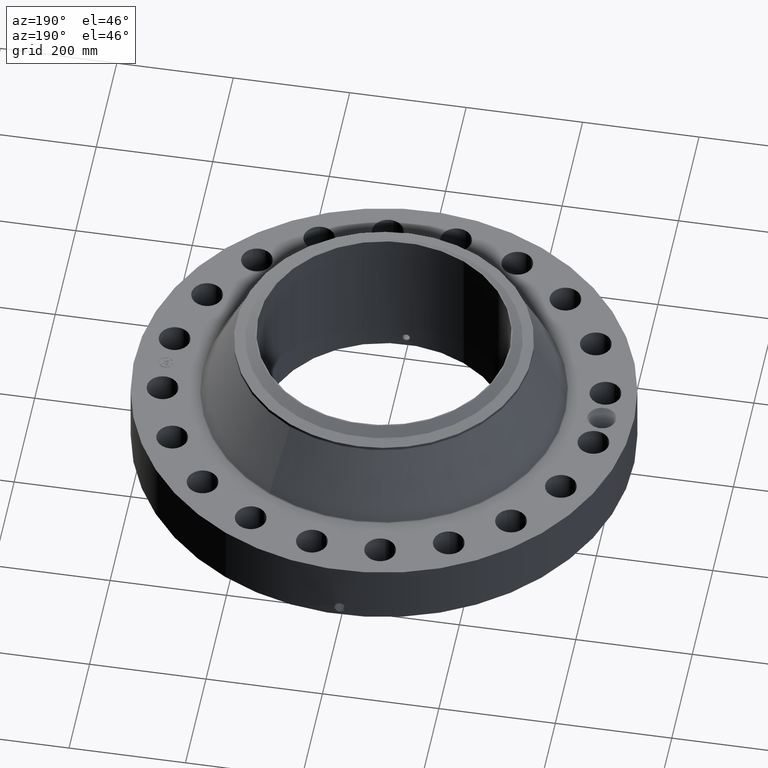
[diagram: clean part render]
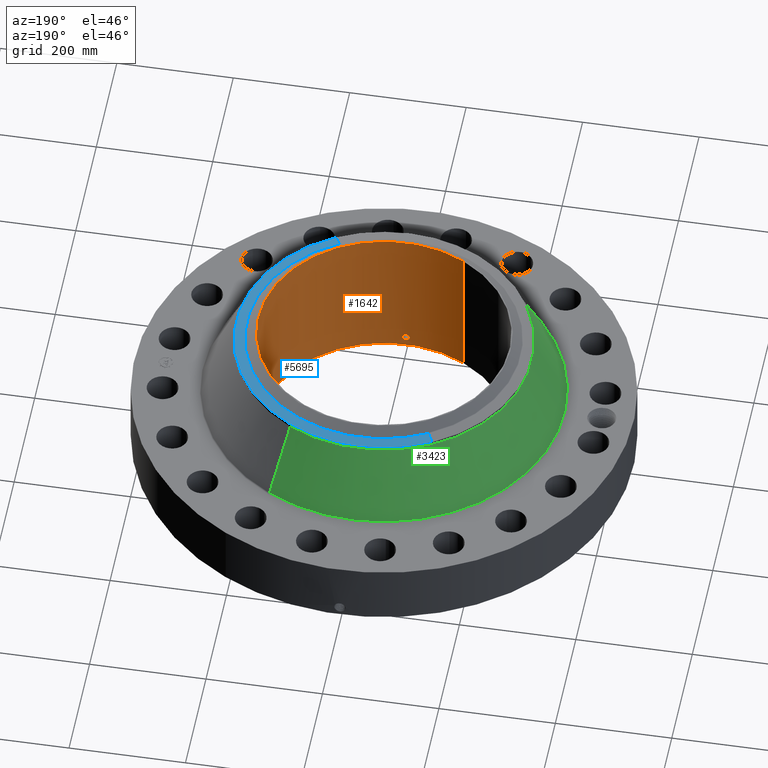
[diagram: same view with three faces highlighted in distinct colors, each labeled with its STEP entity id]
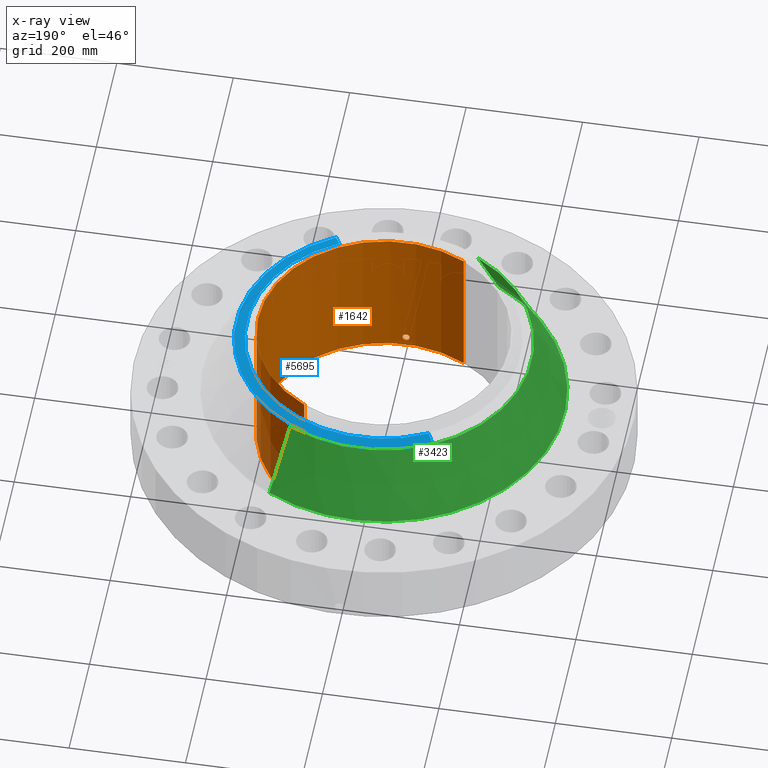
[diagram: x-ray of the same camera — body ghosted, the three highlighted faces saturated]
A machine part, auxiliary view with three faces highlighted in distinct colors.
The next image is the same camera in x-ray (body ghosted, the three faces saturated) — at least one of them is partly hidden behind the body in this view.
Their STEP definitions:

[orange] entity #1642 — the highlighted cylindrical surface (partial cylindrical patch) has radius 215.9 mm, axis along (0, 0, -1).
#262=AXIS2_PLACEMENT_3D('Circle Axis2P3D',#260,#261,$) ;
#1573=AXIS2_PLACEMENT_3D('Cylinder Axis2P3D',#1570,#1571,#1572) ;
#1577=AXIS2_PLACEMENT_3D('Circle Axis2P3D',#1575,#1576,$) ;
#260=CARTESIAN_POINT('Axis2P3D Location',(0.,0.,0.250000000001)) ;
#264=CARTESIAN_POINT('Vertex',(4.07511707815,7.4594517761,0.250000000001)) ;
#266=CARTESIAN_POINT('Vertex',(-4.07511707815,-7.4594517761,0.250000000001)) ;
#1570=CARTESIAN_POINT('Axis2P3D Location',(0.,0.,5.12500000002)) ;
#1575=CARTESIAN_POINT('Axis2P3D Location',(0.,0.,10.)) ;
#1579=CARTESIAN_POINT('Vertex',(4.07511707815,7.4594517761,10.)) ;
#1581=CARTESIAN_POINT('Vertex',(-4.07511707815,-7.4594517761,10.)) ;
#1584=CARTESIAN_POINT('Line Origine',(4.07511707815,7.4594517761,5.12500000002)) ;
#1589=CARTESIAN_POINT('Line Origine',(-4.07511707815,-7.4594517761,5.12500000002)) ;
#1601=CARTESIAN_POINT('Control Point',(0.219395640473,-8.49716809022,0.820143615352)) ;
#1602=CARTESIAN_POINT('Control Point',(0.194443120279,-8.49781236066,0.77446833351)) ;
#1603=CARTESIAN_POINT('Control Point',(0.157605673621,-8.4986718436,0.735288938197)) ;
#1604=CARTESIAN_POINT('Control Point',(0.11110904749,-8.49950770969,0.706757346207)) ;
#1605=CARTESIAN_POINT('Control Point',(0.0336745178909,-8.50017275739,0.684117585566)) ;
#1606=CARTESIAN_POINT('Control Point',(-0.0446699380466,-8.49994295238,0.691943471584)) ;
#1607=CARTESIAN_POINT('Control Point',(-0.0702993750096,-8.49976455241,0.697955885418)) ;
#1608=CARTESIAN_POINT('Control Point',(-0.143955109876,-8.49897618111,0.725787195528)) ;
#1609=CARTESIAN_POINT('Control Point',(-0.203242425452,-8.49768931438,0.780500538765)) ;
#1610=CARTESIAN_POINT('Control Point',(-0.232208125491,-8.49684524708,0.826738774964)) ;
#1611=CARTESIAN_POINT('Control Point',(-0.255840248859,-8.49615133503,0.904885871886)) ;
#1612=CARTESIAN_POINT('Control Point',(-0.248283243818,-8.49637304961,0.984251373084)) ;
#1613=CARTESIAN_POINT('Control Point',(-0.242049456245,-8.496558599,1.01081460461)) ;
#1614=CARTESIAN_POINT('Control Point',(-0.232315759562,-8.49683449463,1.0362062653)) ;
#1615=CARTESIAN_POINT('Control Point',(-0.219395640473,-8.49716809022,1.05985638466)) ;
#1616=CARTESIAN_POINT('Vertex',(0.219395640473,-8.49716809022,0.820143615352)) ;
#1618=CARTESIAN_POINT('Vertex',(-0.219395640473,-8.49716809022,1.05985638466)) ;
#1622=CARTESIAN_POINT('Control Point',(-0.219395640473,-8.49716809022,1.05985638466)) ;
#1623=CARTESIAN_POINT('Control Point',(-0.194443120273,-8.49781236066,1.10553166651)) ;
#1624=CARTESIAN_POINT('Control Point',(-0.157605673604,-8.4986718436,1.14471106183)) ;
#1625=CARTESIAN_POINT('Control Point',(-0.111109047519,-8.49950770969,1.17324265379)) ;
#1626=CARTESIAN_POINT('Control Point',(-0.0336745179073,-8.50017275739,1.19588241444)) ;
#1627=CARTESIAN_POINT('Control Point',(0.044669938044,-8.49994295238,1.18805652842)) ;
#1628=CARTESIAN_POINT('Control Point',(0.0702993750006,-8.49976455241,1.18204411459)) ;
#1629=CARTESIAN_POINT('Control Point',(0.143955109862,-8.49897618111,1.15421280449)) ;
#1630=CARTESIAN_POINT('Control Point',(0.203242425435,-8.49768931438,1.09949946126)) ;
#1631=CARTESIAN_POINT('Control Point',(0.232208125494,-8.49684524708,1.05326122503)) ;
#1632=CARTESIAN_POINT('Control Point',(0.255840248863,-8.49615133503,0.975114128101)) ;
#1633=CARTESIAN_POINT('Control Point',(0.248283243815,-8.49637304961,0.895748626893)) ;
#1634=CARTESIAN_POINT('Control Point',(0.242049456258,-8.496558599,0.869185395433)) ;
#1635=CARTESIAN_POINT('Control Point',(0.232315759571,-8.49683449463,0.843793734723)) ;
#1636=CARTESIAN_POINT('Control Point',(0.219395640473,-8.49716809022,0.820143615352)) ;
#261=DIRECTION('Axis2P3D Direction',(0.,0.,-0.0393700787402)) ;
#1571=DIRECTION('Axis2P3D Direction',(0.,0.,-0.0393700787402)) ;
#1572=DIRECTION('Axis2P3D XDirection',(-0.0188750212049,-0.0345504945626,0.)) ;
#1576=DIRECTION('Axis2P3D Direction',(0.,0.,-0.0393700787402)) ;
#1585=DIRECTION('Vector Direction',(0.,0.,-0.0393700787402)) ;
#1590=DIRECTION('Vector Direction',(0.,0.,-0.0393700787402)) ;
#1586=VECTOR('Line Direction',#1585,0.0393700787402) ;
#1591=VECTOR('Line Direction',#1590,0.0393700787402) ;
#1595=ORIENTED_EDGE('',*,*,#1583,.F.) ;
#1596=ORIENTED_EDGE('',*,*,#1588,.T.) ;
#1597=ORIENTED_EDGE('',*,*,#268,.T.) ;
#1598=ORIENTED_EDGE('',*,*,#1593,.F.) ;
#1639=ORIENTED_EDGE('',*,*,#1620,.F.) ;
#1640=ORIENTED_EDGE('',*,*,#1637,.F.) ;
#1641=FACE_BOUND('',#1638,.T.) ;
#1642=ADVANCED_FACE('PartBody',(#1599,#1641),#1574,.F.) ;
#1600=B_SPLINE_CURVE_WITH_KNOTS('',5,(#1601,#1602,#1603,#1604,#1605,#1606,#1607,#1608,#1609,#1610,#1611,#1612,#1613,#1614,#1615),.UNSPECIFIED.,.F.,.U.,(6,3,3,3,6),(0.,9.34857122309,14.0228372762,23.3728719338,28.2134512647),.UNSPECIFIED.) ;
#1621=B_SPLINE_CURVE_WITH_KNOTS('',5,(#1622,#1623,#1624,#1625,#1626,#1627,#1628,#1629,#1630,#1631,#1632,#1633,#1634,#1635,#1636),.UNSPECIFIED.,.F.,.U.,(6,3,3,3,6),(0.,9.34857122522,14.0228372786,23.3728719347,28.2134512689),.UNSPECIFIED.) ;
#263=CIRCLE('generated circle',#262,8.50000000003) ;
#1578=CIRCLE('generated circle',#1577,8.50000000003) ;
#1574=CYLINDRICAL_SURFACE('generated cylinder',#1573,8.50000000003) ;
#268=EDGE_CURVE('',#265,#267,#263,.T.) ;
#1583=EDGE_CURVE('',#1580,#1582,#1578,.T.) ;
#1588=EDGE_CURVE('',#1580,#265,#1587,.T.) ;
#1593=EDGE_CURVE('',#1582,#267,#1592,.T.) ;
#1620=EDGE_CURVE('',#1617,#1619,#1600,.T.) ;
#1637=EDGE_CURVE('',#1619,#1617,#1621,.T.) ;
#1594=EDGE_LOOP('',(#1595,#1596,#1597,#1598)) ;
#1638=EDGE_LOOP('',(#1639,#1640)) ;
#1599=FACE_OUTER_BOUND('',#1594,.T.) ;
#1587=LINE('Line',#1584,#1586) ;
#1592=LINE('Line',#1589,#1591) ;
#265=VERTEX_POINT('',#264) ;
#267=VERTEX_POINT('',#266) ;
#1580=VERTEX_POINT('',#1579) ;
#1582=VERTEX_POINT('',#1581) ;
#1617=VERTEX_POINT('',#1616) ;
#1619=VERTEX_POINT('',#1618) ;

[blue] entity #5695 — the highlighted conical surface has half-angle 80 deg.
#4215=AXIS2_PLACEMENT_3D('Circle Axis2P3D',#4213,#4214,$) ;
#4242=AXIS2_PLACEMENT_3D('Circle Axis2P3D',#4240,#4241,$) ;
#5054=AXIS2_PLACEMENT_3D('Circle Axis2P3D',#5052,#5053,$) ;
#5676=AXIS2_PLACEMENT_3D('Cone Axis2P3D',#5673,#5674,#5675) ;
#4210=CARTESIAN_POINT('Vertex',(4.79425538606,8.77582561894,9.35384235724)) ;
#4213=CARTESIAN_POINT('Axis2P3D Location',(0.,0.,9.35384235724)) ;
#4217=CARTESIAN_POINT('Vertex',(4.79425538606,-8.77582561894,9.35384235724)) ;
#4237=CARTESIAN_POINT('Vertex',(-4.79425538606,8.77582561894,9.35384235724)) ;
#4240=CARTESIAN_POINT('Axis2P3D Location',(0.,0.,9.35384235724)) ;
#5030=CARTESIAN_POINT('Vertex',(-4.4473880412,8.14088920311,9.48141601926)) ;
#5037=CARTESIAN_POINT('Vertex',(4.4473880412,-8.14088920311,9.48141601926)) ;
#5052=CARTESIAN_POINT('Axis2P3D Location',(0.,0.,9.48141601926)) ;
#5673=CARTESIAN_POINT('Axis2P3D Location',(0.,0.,9.48141601926)) ;
#5678=CARTESIAN_POINT('Line Origine',(-4.62082171363,8.45835741102,9.41762918825)) ;
#5683=CARTESIAN_POINT('Line Origine',(4.62082171363,-8.45835741102,9.41762918825)) ;
#4214=DIRECTION('Axis2P3D Direction',(0.,0.,-0.0393700787402)) ;
#4241=DIRECTION('Axis2P3D Direction',(0.,0.,-0.0393700787402)) ;
#5053=DIRECTION('Axis2P3D Direction',(0.,0.,0.0393700787402)) ;
#5674=DIRECTION('Axis2P3D Direction',(-0.,-0.,-0.0393700787402)) ;
#5675=DIRECTION('Axis2P3D XDirection',(0.0188750212049,-0.0345504945626,0.)) ;
#5679=DIRECTION('Vector Direction',(-0.0185882672208,0.0340255949157,-0.00683654242783)) ;
#5684=DIRECTION('Vector Direction',(0.0185882672208,-0.0340255949157,-0.00683654242783)) ;
#5680=VECTOR('Line Direction',#5679,0.0393700787402) ;
#5685=VECTOR('Line Direction',#5684,0.0393700787402) ;
#5689=ORIENTED_EDGE('',*,*,#5682,.F.) ;
#5690=ORIENTED_EDGE('',*,*,#5056,.F.) ;
#5691=ORIENTED_EDGE('',*,*,#5687,.T.) ;
#5692=ORIENTED_EDGE('',*,*,#4219,.T.) ;
#5693=ORIENTED_EDGE('',*,*,#4244,.F.) ;
#5695=ADVANCED_FACE('PartBody',(#5694),#5677,.T.) ;
#4216=CIRCLE('generated circle',#4215,10.) ;
#4243=CIRCLE('generated circle',#4242,10.) ;
#5055=CIRCLE('generated circle',#5054,9.27649380996) ;
#5677=CONICAL_SURFACE('Cone',#5676,9.27649380996,1.3962634016) ;
#4219=EDGE_CURVE('',#4218,#4211,#4216,.F.) ;
#4244=EDGE_CURVE('',#4238,#4211,#4243,.T.) ;
#5056=EDGE_CURVE('',#5038,#5031,#5055,.T.) ;
#5682=EDGE_CURVE('',#5031,#4238,#5681,.T.) ;
#5687=EDGE_CURVE('',#5038,#4218,#5686,.T.) ;
#5688=EDGE_LOOP('',(#5689,#5690,#5691,#5692,#5693)) ;
#5694=FACE_OUTER_BOUND('',#5688,.T.) ;
#5681=LINE('Line',#5678,#5680) ;
#5686=LINE('Line',#5683,#5685) ;
#4211=VERTEX_POINT('',#4210) ;
#4218=VERTEX_POINT('',#4217) ;
#4238=VERTEX_POINT('',#4237) ;
#5031=VERTEX_POINT('',#5030) ;
#5038=VERTEX_POINT('',#5037) ;

[green] entity #3423 — the highlighted conical surface has half-angle 25.978 deg.
#2641=AXIS2_PLACEMENT_3D('Circle Axis2P3D',#2639,#2640,$) ;
#3384=AXIS2_PLACEMENT_3D('Cone Axis2P3D',#3381,#3382,#3383) ;
#3414=AXIS2_PLACEMENT_3D('Circle Axis2P3D',#3412,#3413,$) ;
#2617=CARTESIAN_POINT('Vertex',(5.85720927136,10.7215496547,4.56743631846)) ;
#2624=CARTESIAN_POINT('Vertex',(-5.85720927136,-10.7215496547,4.56743631846)) ;
#2639=CARTESIAN_POINT('Axis2P3D Location',(0.,0.,4.56743631846)) ;
#3381=CARTESIAN_POINT('Axis2P3D Location',(0.,0.,9.1176218848)) ;
#3386=CARTESIAN_POINT('Line Origine',(5.32573232871,9.74868763683,6.84252910163)) ;
#3390=CARTESIAN_POINT('Vertex',(4.79425538606,8.77582561894,9.1176218848)) ;
#3397=CARTESIAN_POINT('Vertex',(-4.79425538606,-8.77582561894,9.1176218848)) ;
#3400=CARTESIAN_POINT('Line Origine',(-5.32573232871,-9.74868763683,6.84252910163)) ;
#3412=CARTESIAN_POINT('Axis2P3D Location',(0.,0.,9.1176218848)) ;
#2640=DIRECTION('Axis2P3D Direction',(0.,0.,-0.0393700787402)) ;
#3382=DIRECTION('Axis2P3D Direction',(0.,0.,-0.0393700787402)) ;
#3383=DIRECTION('Axis2P3D XDirection',(-0.0188750212049,-0.0345504945626,0.)) ;
#3387=DIRECTION('Vector Direction',(0.00826783836718,0.0151341766162,-0.0353921269054)) ;
#3401=DIRECTION('Vector Direction',(-0.00826783836718,-0.0151341766162,-0.0353921269054)) ;
#3413=DIRECTION('Axis2P3D Direction',(0.,0.,-0.0393700787402)) ;
#3388=VECTOR('Line Direction',#3387,0.0393700787402) ;
#3402=VECTOR('Line Direction',#3401,0.0393700787402) ;
#3418=ORIENTED_EDGE('',*,*,#2643,.F.) ;
#3419=ORIENTED_EDGE('',*,*,#3404,.T.) ;
#3420=ORIENTED_EDGE('',*,*,#3416,.T.) ;
#3421=ORIENTED_EDGE('',*,*,#3392,.F.) ;
#3423=ADVANCED_FACE('PartBody',(#3422),#3385,.T.) ;
#2642=CIRCLE('generated circle',#2641,12.2171407231) ;
#3415=CIRCLE('generated circle',#3414,10.) ;
#3385=CONICAL_SURFACE('Cone',#3384,10.,0.45340683612) ;
#2643=EDGE_CURVE('',#2625,#2618,#2642,.T.) ;
#3392=EDGE_CURVE('',#2618,#3391,#3389,.F.) ;
#3404=EDGE_CURVE('',#2625,#3398,#3403,.F.) ;
#3416=EDGE_CURVE('',#3398,#3391,#3415,.T.) ;
#3417=EDGE_LOOP('',(#3418,#3419,#3420,#3421)) ;
#3422=FACE_OUTER_BOUND('',#3417,.T.) ;
#3389=LINE('Line',#3386,#3388) ;
#3403=LINE('Line',#3400,#3402) ;
#2618=VERTEX_POINT('',#2617) ;
#2625=VERTEX_POINT('',#2624) ;
#3391=VERTEX_POINT('',#3390) ;
#3398=VERTEX_POINT('',#3397) ;